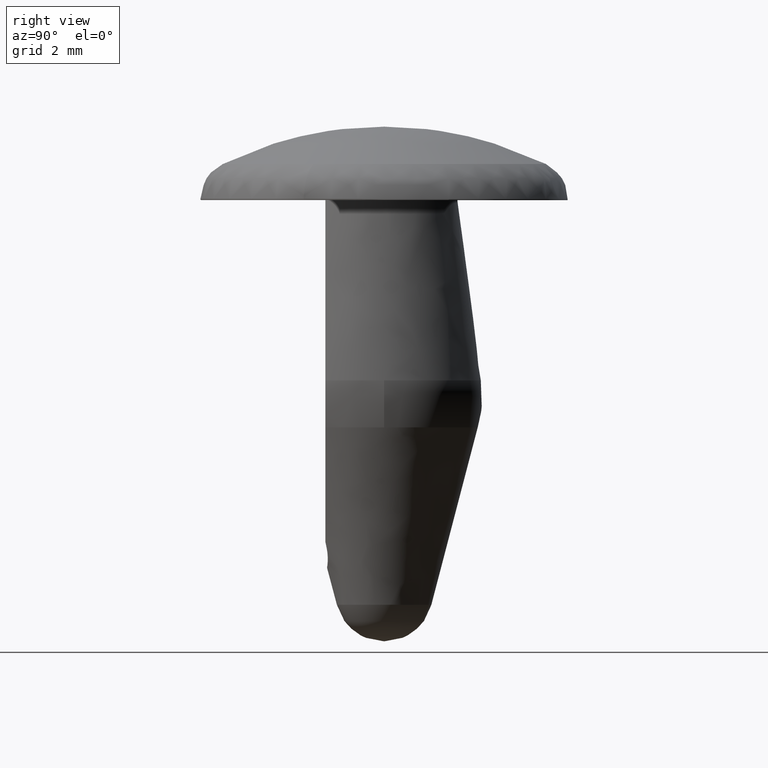
[diagram: clean part render]
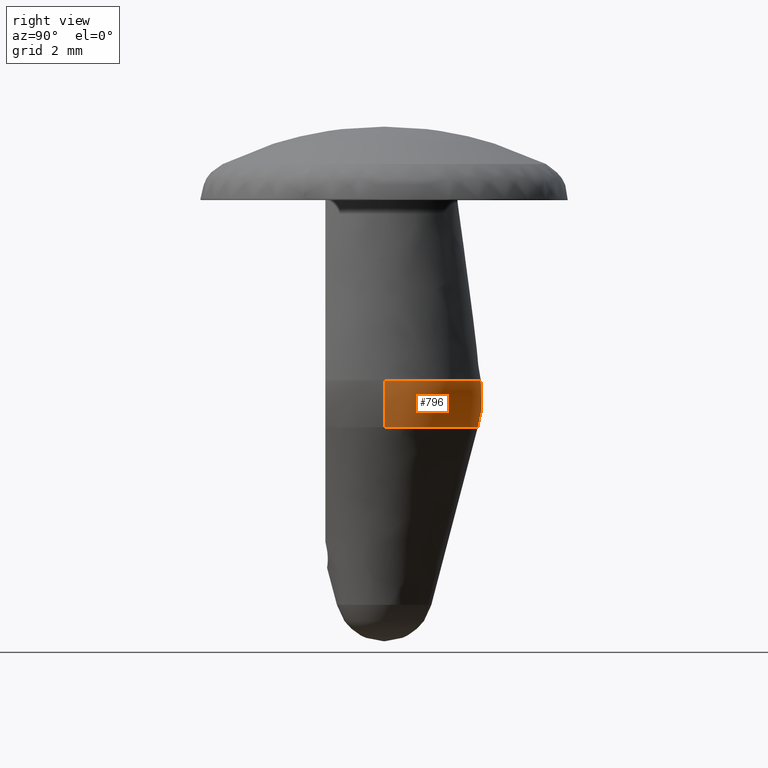
[diagram: same view with one face highlighted and labeled with its STEP entity id]
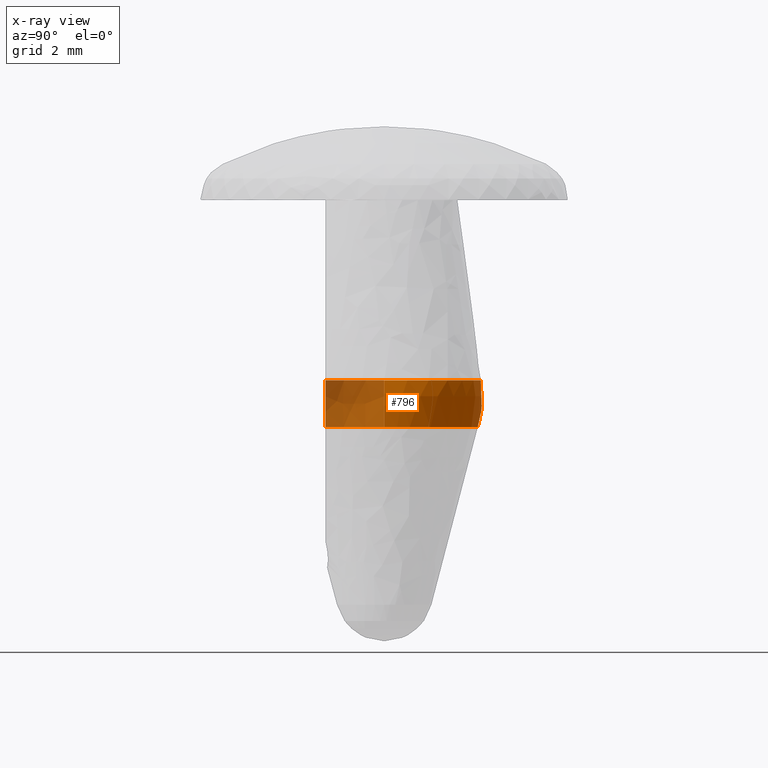
[diagram: x-ray of the same camera — body ghosted, the highlighted face saturated]
A machine part, right view. The second image highlights one B-rep face of the part: STEP entity #796.
The next image is the same camera in x-ray: the body ghosted, the highlighted face saturated — about 38% of this face is hidden behind the body in this view.
In plain terms, the highlighted face is a freeform B-spline surface patch.
Its self-contained STEP definition (entity closure, byte-faithful):
#286=CARTESIAN_POINT('',(-1.496163553573590,-1.199999999999986,-4.635257124094320));
#287=VERTEX_POINT('',#286);
#288=CARTESIAN_POINT('',(-1.853130891334652,0.494377845045473,-4.635258875572371));
#289=VERTEX_POINT('',#288);
#290=CARTESIAN_POINT('',(-1.496163553573590,-1.199999999999986,-4.635257124094320));
#291=CARTESIAN_POINT('',(-2.103232487399047,-0.443104465872611,-4.635258116353674));
#292=CARTESIAN_POINT('',(-1.853130891334651,0.494377845045473,-4.635258875572371));
#300=(BOUNDED_CURVE()B_SPLINE_CURVE(2,(#290,#291,#292),.UNSPECIFIED.,.F.,.U.)B_SPLINE_CURVE_WITH_KNOTS((3,3),(0.0,0.206598656610425),.UNSPECIFIED.)CURVE()GEOMETRIC_REPRESENTATION_ITEM()RATIONAL_B_SPLINE_CURVE((1.0,0.834154077139532,0.873889423482797))REPRESENTATION_ITEM(''));
#301=EDGE_CURVE('',#287,#289,#300,.T.);
#359=CARTESIAN_POINT('',(-0.192220907132986,1.908285629261297,-4.635259230446605));
#360=VERTEX_POINT('',#359);
#366=CARTESIAN_POINT('',(1.917943262344400,-0.000000111524127,-4.635256153124296));
#367=VERTEX_POINT('',#366);
#368=CARTESIAN_POINT('',(-0.192220907132986,1.908285629261297,-4.635259230446605));
#369=CARTESIAN_POINT('',(0.670655794026616,1.995203075432844,-4.635258449610775));
#370=CARTESIAN_POINT('',(1.305840773213348,1.404736673732055,-4.635257514462345));
#371=CARTESIAN_POINT('',(1.917943342818645,0.835727623471763,-4.635256613296896));
#372=CARTESIAN_POINT('',(1.917943262344400,-0.000000111524127,-4.635256153124296));
#380=(BOUNDED_CURVE()B_SPLINE_CURVE(2,(#368,#369,#370,#371,#372),.UNSPECIFIED.,.F.,.U.)B_SPLINE_CURVE_WITH_KNOTS((3,2,3),(0.478695209469498,0.666666666666667,0.848806047577946),.UNSPECIFIED.)CURVE()GEOMETRIC_REPRESENTATION_ITEM()RATIONAL_B_SPLINE_CURVE((0.868395425824294,0.849106957897236,1.0,0.853788624708119,0.867362345683337))REPRESENTATION_ITEM(''));
#381=EDGE_CURVE('',#360,#367,#380,.T.);
#510=CARTESIAN_POINT('',(-1.853130891334651,0.494377845045473,-4.635258875572371));
#511=CARTESIAN_POINT('',(-1.710660088919092,1.028416951093763,-4.635258979820431));
#512=CARTESIAN_POINT('',(-1.305840153261273,1.404736627963445,-4.635259071984208));
#513=CARTESIAN_POINT('',(-0.833660527748491,1.843673716890839,-4.635259179483501));
#514=CARTESIAN_POINT('',(-0.192220907132986,1.908285629261297,-4.635259230446605));
#522=(BOUNDED_CURVE()B_SPLINE_CURVE(2,(#510,#511,#512,#513,#514),.UNSPECIFIED.,.F.,.U.)B_SPLINE_CURVE_WITH_KNOTS((3,2,3),(0.206598656610425,0.333333333333333,0.478695209469498),.UNSPECIFIED.)CURVE()GEOMETRIC_REPRESENTATION_ITEM()RATIONAL_B_SPLINE_CURVE((0.873889423482797,0.898264442933105,1.0,0.883311562175401,0.868395425824294))REPRESENTATION_ITEM(''));
#523=EDGE_CURVE('',#289,#360,#522,.T.);
#699=CARTESIAN_POINT('',(-1.217595698680286,-1.464649086310717,-4.683814344699183));
#700=CARTESIAN_POINT('',(-1.278542737497976,-1.537962440500802,-4.348553266800303));
#701=CARTESIAN_POINT('',(-1.278542737497976,-1.537962440500801,-4.0));
#702=CARTESIAN_POINT('',(-1.278542737497976,-1.537962440500802,-3.813320396815827));
#703=CARTESIAN_POINT('',(-1.260819048134568,-1.516642567688911,-3.628711057659776));
#704=CARTESIAN_POINT('',(-1.904661710508076,-0.893475671101647,-4.683814344699183));
#705=CARTESIAN_POINT('',(-2.0,-0.938198805774605,-4.348553266800303));
#706=CARTESIAN_POINT('',(-2.0,-0.938198805774605,-4.0));
#707=CARTESIAN_POINT('',(-2.000000000000000,-0.938198805774605,-3.813320396815827));
#708=CARTESIAN_POINT('',(-1.972275171030902,-0.925193105060048,-3.628711057659775));
#709=CARTESIAN_POINT('',(-1.904661710508077,0.0,-4.683814344699182));
#710=CARTESIAN_POINT('',(-2.000000000000000,0.0,-4.348553266800304));
#711=CARTESIAN_POINT('',(-2.0,0.0,-4.0));
#712=CARTESIAN_POINT('',(-2.000000000000000,0.0,-3.813320396815828));
#713=CARTESIAN_POINT('',(-1.972275171030903,0.0,-3.628711057659776));
#714=CARTESIAN_POINT('',(-1.904661710508076,1.904661710508076,-4.683814344699183));
#715=CARTESIAN_POINT('',(-2.0,2.0,-4.348553266800304));
#716=CARTESIAN_POINT('',(-2.000000000000000,2.000000000000000,-4.000000000000000));
#717=CARTESIAN_POINT('',(-2.0,2.0,-3.813320396815827));
#718=CARTESIAN_POINT('',(-1.972275171030902,1.972275171030902,-3.628711057659774));
#719=CARTESIAN_POINT('',(0.0,1.904661710508077,-4.683814344699182));
#720=CARTESIAN_POINT('',(0.0,2.000000000000000,-4.348553266800304));
#721=CARTESIAN_POINT('',(0.0,2.0,-4.0));
#722=CARTESIAN_POINT('',(0.0,2.000000000000000,-3.813320396815828));
#723=CARTESIAN_POINT('',(0.0,1.972275171030903,-3.628711057659776));
#724=CARTESIAN_POINT('',(1.904661710508076,1.904661710508076,-4.683814344699183));
#725=CARTESIAN_POINT('',(2.0,2.0,-4.348553266800304));
#726=CARTESIAN_POINT('',(2.000000000000000,2.000000000000000,-4.000000000000000));
#727=CARTESIAN_POINT('',(2.0,2.0,-3.813320396815827));
#728=CARTESIAN_POINT('',(1.972275171030902,1.972275171030902,-3.628711057659774));
#729=CARTESIAN_POINT('',(1.904661710508077,0.0,-4.683814344699182));
#730=CARTESIAN_POINT('',(2.000000000000000,0.0,-4.348553266800304));
#731=CARTESIAN_POINT('',(2.0,0.0,-4.0));
#732=CARTESIAN_POINT('',(2.000000000000000,0.0,-3.813320396815828));
#733=CARTESIAN_POINT('',(1.972275171030903,0.0,-3.628711057659776));
#741=(BOUNDED_SURFACE()B_SPLINE_SURFACE(2,2,((#699,#704,#709,#714,#719,#724,#729),(#700,#705,#710,#715,#720,#725,#730),(#701,#706,#711,#716,#721,#726,#731),(#702,#707,#712,#717,#722,#727,#732),(#703,#708,#713,#718,#723,#728,#733)),.UNSPECIFIED.,.F.,.F.,.U.)B_SPLINE_SURFACE_WITH_KNOTS((3,2,3),(3,2,2,3),(0.0,0.717792335106192,1.110871975596446),(0.0,1.840679095630342,5.154387594615102,8.468096093599861),.UNSPECIFIED.)GEOMETRIC_REPRESENTATION_ITEM()RATIONAL_B_SPLINE_SURFACE(((0.791382915217775,0.774682290090880,0.925208741177413,0.654221374899618,0.925208741177413,0.654221374899618,0.925208741177413),(0.814866255439175,0.797670059262888,0.952663202509705,0.673634610681506,0.952663202509705,0.673634610681506,0.952663202509705),(0.855356072631423,0.837305416186433,1.0,0.707106781186548,1.0,0.707106781186548,1.0),(0.833182914731805,0.815600180440352,0.974077277745391,0.688776648493498,0.974077277745391,0.688776648493498,0.974077277745391),(0.816109846629487,0.798887406836007,0.954117089645253,0.674662664134131,0.954117089645253,0.674662664134131,0.954117089645253)))REPRESENTATION_ITEM('')SURFACE());
#742=CARTESIAN_POINT('',(-1.573733587823400,-1.199999999999986,-3.677024810886955));
#743=VERTEX_POINT('',#742);
#744=CARTESIAN_POINT('',(1.979049621783978,9.594023E-011,-3.677024810964194));
#745=VERTEX_POINT('',#744);
#746=CARTESIAN_POINT('',(-1.573733587823400,-1.199999999999985,-3.677024810886955));
#747=CARTESIAN_POINT('',(-2.671100495634820,0.239135967490644,-3.677024810886955));
#748=CARTESIAN_POINT('',(-1.335550247817410,1.460459838885798,-3.677024810886955));
#749=CARTESIAN_POINT('',(4.336809E-016,2.681783710280953,-3.677024810886955));
#750=CARTESIAN_POINT('',(1.335550247817410,1.460459838885797,-3.677024810886955));
#751=CARTESIAN_POINT('',(1.979049621689369,0.871997407148744,-3.677024810886955));
#752=CARTESIAN_POINT('',(1.979049621783979,9.594023E-011,-3.677024810964194));
#760=(BOUNDED_CURVE()B_SPLINE_CURVE(2,(#746,#747,#748,#749,#750,#751,#752),.UNSPECIFIED.,.F.,.U.)B_SPLINE_CURVE_WITH_KNOTS((3,2,2,3),(0.0,0.333333333333333,0.666666666666667,0.852508629391287),.UNSPECIFIED.)CURVE()GEOMETRIC_REPRESENTATION_ITEM()RATIONAL_B_SPLINE_CURVE((1.0,0.737960192012123,1.0,0.737960192012123,1.0,0.853906023314651,0.870714394846003))REPRESENTATION_ITEM(''));
#761=EDGE_CURVE('',#743,#745,#760,.T.);
#762=ORIENTED_EDGE('',*,*,#761,.T.);
#763=CARTESIAN_POINT('',(1.917943262344401,-0.000000111524127,-4.635256153124296));
#764=CARTESIAN_POINT('',(2.000000000000000,0.0,-4.322927756196548));
#765=CARTESIAN_POINT('',(2.0,0.0,-4.0));
#766=CARTESIAN_POINT('',(2.0,0.0,-3.837832913160346));
#767=CARTESIAN_POINT('',(1.979049621783979,9.594023E-011,-3.677024810964194));
#775=(BOUNDED_CURVE()B_SPLINE_CURVE(2,(#763,#764,#765,#766,#767),.UNSPECIFIED.,.F.,.U.)B_SPLINE_CURVE_WITH_KNOTS((3,2,3),(0.402375499125276,0.500000000000000,0.550122985006216),.UNSPECIFIED.)CURVE()GEOMETRIC_REPRESENTATION_ITEM()RATIONAL_B_SPLINE_CURVE((0.929166178754318,0.955990224678399,1.0,0.977404224464079,0.959338719801722))REPRESENTATION_ITEM(''));
#776=EDGE_CURVE('',#367,#745,#775,.T.);
#777=ORIENTED_EDGE('',*,*,#776,.F.);
#778=ORIENTED_EDGE('',*,*,#381,.F.);
#779=ORIENTED_EDGE('',*,*,#523,.F.);
#780=ORIENTED_EDGE('',*,*,#301,.F.);
#781=CARTESIAN_POINT('',(-1.496163553573590,-1.199999999999986,-4.635257124094320));
#782=CARTESIAN_POINT('',(-1.540742512590890,-1.199999999999986,-4.502882902459283));
#783=CARTESIAN_POINT('',(-1.570734711063752,-1.199999999999986,-4.367845915096151));
#784=CARTESIAN_POINT('',(-1.594664026476880,-1.199999999999986,-4.161446185278321));
#785=CARTESIAN_POINT('',(-1.599099395698607,-1.199999999999986,-4.091844386168440));
#786=CARTESIAN_POINT('',(-1.600627423754165,-1.199999999999986,-3.951959332168730));
#787=CARTESIAN_POINT('',(-1.597727101306798,-1.199999999999986,-3.882569205044828));
#788=CARTESIAN_POINT('',(-1.586993671774362,-1.199999999999986,-3.767915230538668));
#789=CARTESIAN_POINT('',(-1.581151906507882,-1.199999999999986,-3.722351187751040));
#790=CARTESIAN_POINT('',(-1.573733587823400,-1.199999999999986,-3.677024810886955));
#791=B_SPLINE_CURVE_WITH_KNOTS('',3,(#781,#782,#783,#784,#785,#786,#787,#788,#789,#790),.UNSPECIFIED.,.F.,.U.,(4,2,2,2,4),(0.0,0.062500000000000,0.093750000000000,0.125000000000000,0.145785502405452),.UNSPECIFIED.);
#792=EDGE_CURVE('',#287,#743,#791,.T.);
#793=ORIENTED_EDGE('',*,*,#792,.T.);
#794=EDGE_LOOP('',(#762,#777,#778,#779,#780,#793));
#795=FACE_OUTER_BOUND('',#794,.T.);
#796=ADVANCED_FACE('',(#795),#741,.T.);